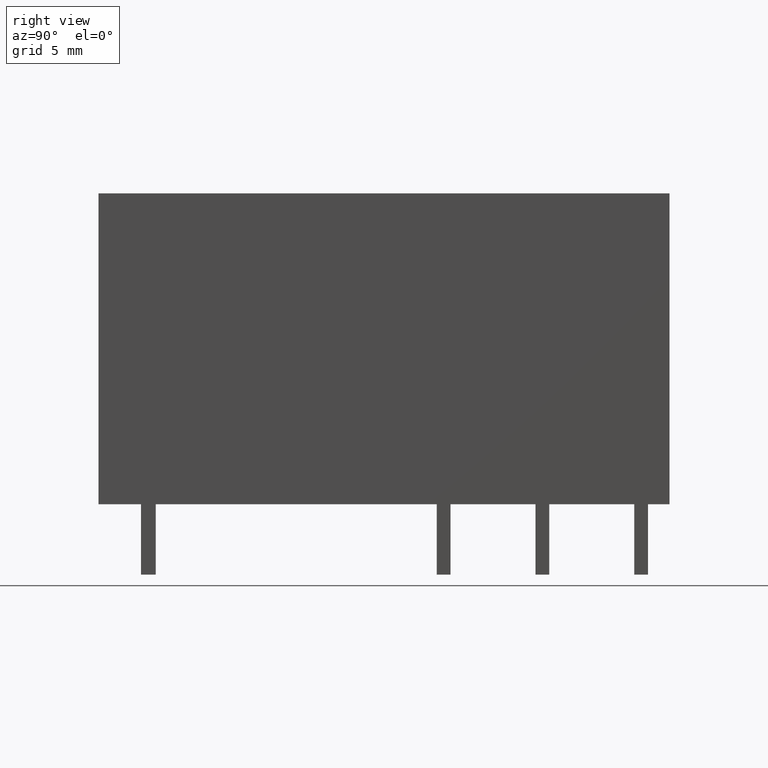
[diagram: clean part render]
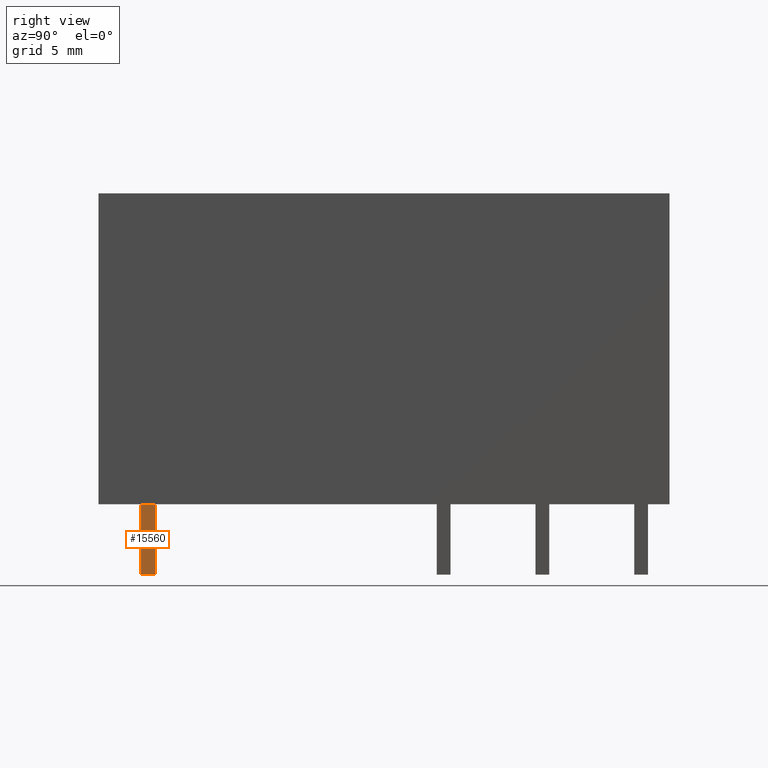
[diagram: same view with one face highlighted and labeled with its STEP entity id]
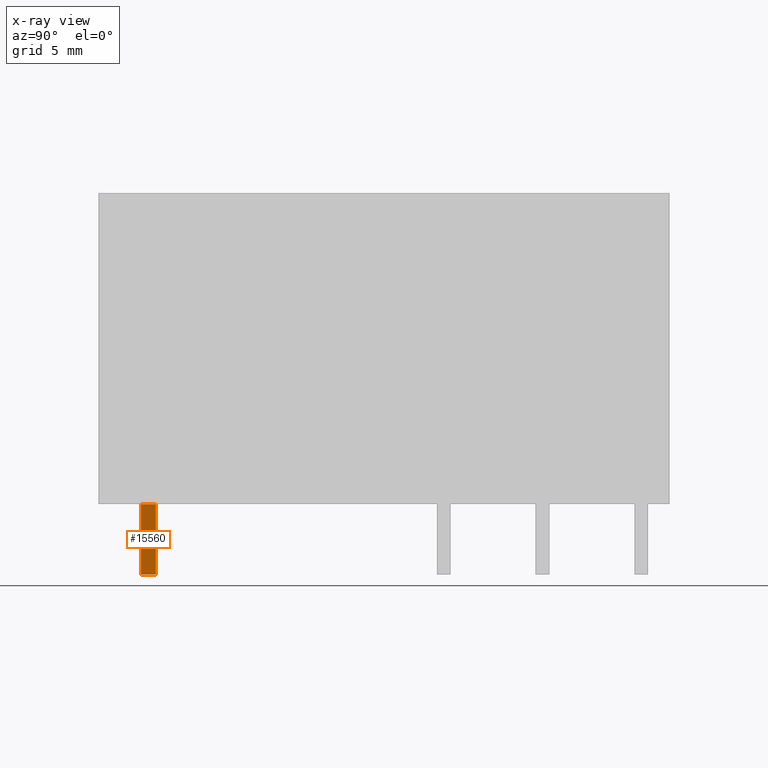
[diagram: x-ray of the same camera — body ghosted, the highlighted face saturated]
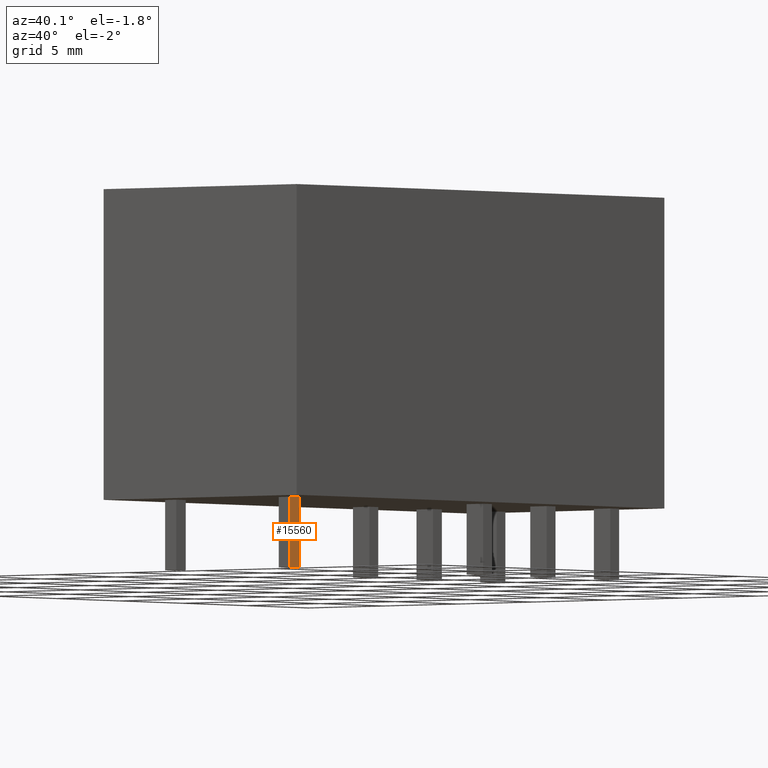
[diagram: same view with one face highlighted and labeled with its STEP entity id]
A machine part, right view. The second image highlights one B-rep face of the part: STEP entity #15560.
The next image is the same camera in x-ray: the body ghosted, the highlighted face saturated — about 0% of this face is hidden behind the body in this view.
A second angle (auxiliary view) of the same face is appended — the face is thin or edge-on in the first view.
In plain terms, the highlighted planar face has unit normal (1, -0, 0).
Its self-contained STEP definition (entity closure, byte-faithful):
#2840=CARTESIAN_POINT('',(2.925,4.175,0.));
#2850=VERTEX_POINT('',#2840);
#2880=CARTESIAN_POINT('',(0.,4.175,0.));
#2890=DIRECTION('',(-1.,0.,0.));
#2900=VECTOR('',#2890,1.);
#2910=LINE('',#2880,#2900);
#2920=CARTESIAN_POINT('',(2.175,4.175,0.));
#2930=VERTEX_POINT('',#2920);
#2940=EDGE_CURVE('',#2850,#2930,#2910,.T.);
#14750=CARTESIAN_POINT('',(2.175,4.175,3.6));
#14760=VERTEX_POINT('',#14750);
#14790=CARTESIAN_POINT('',(2.175,4.175,3.6));
#14800=DIRECTION('',(1.,0.,0.));
#14810=VECTOR('',#14800,1.);
#14820=LINE('',#14790,#14810);
#14830=CARTESIAN_POINT('',(2.925,4.175,3.6));
#14840=VERTEX_POINT('',#14830);
#14850=EDGE_CURVE('',#14760,#14840,#14820,.T.);
#15230=CARTESIAN_POINT('',(2.925,4.175,0.));
#15240=DIRECTION('',(0.,0.,1.));
#15250=VECTOR('',#15240,1.);
#15260=LINE('',#15230,#15250);
#15270=EDGE_CURVE('',#2850,#14840,#15260,.T.);
#15400=CARTESIAN_POINT('',(2.175,4.175,0.));
#15410=DIRECTION('',(-0.,1.,0.));
#15420=DIRECTION('',(1.,0.,0.));
#15430=AXIS2_PLACEMENT_3D('',#15400,#15410,#15420);
#15440=PLANE('',#15430);
#15450=ORIENTED_EDGE('',*,*,#15270,.F.);
#15460=ORIENTED_EDGE('',*,*,#14850,.T.);
#15470=CARTESIAN_POINT('',(2.175,4.175,0.));
#15480=DIRECTION('',(0.,0.,1.));
#15490=VECTOR('',#15480,1.);
#15500=LINE('',#15470,#15490);
#15510=EDGE_CURVE('',#2930,#14760,#15500,.T.);
#15520=ORIENTED_EDGE('',*,*,#15510,.T.);
#15530=ORIENTED_EDGE('',*,*,#2940,.T.);
#15540=EDGE_LOOP('',(#15530,#15520,#15460,#15450));
#15550=FACE_OUTER_BOUND('',#15540,.T.);
#15560=ADVANCED_FACE('',(#15550),#15440,.T.);